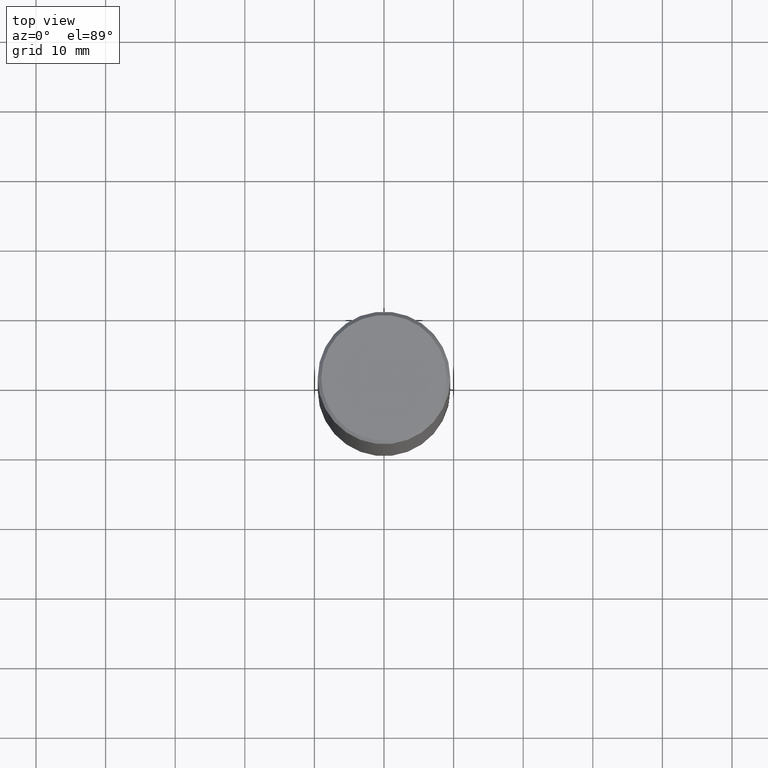
[diagram: clean part render]
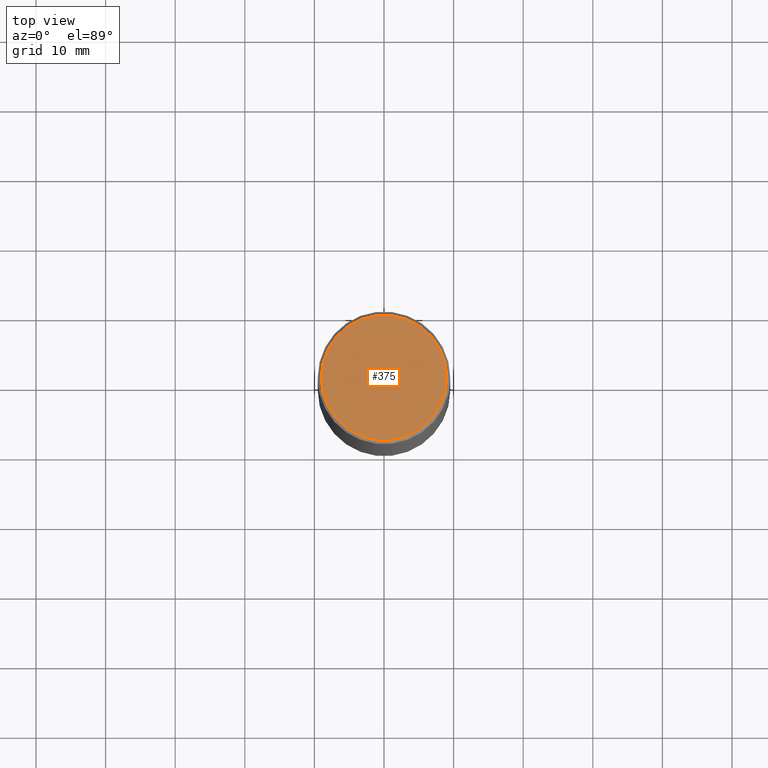
[diagram: same view with one face highlighted and labeled with its STEP entity id]
A machine part, top view. The second image highlights one B-rep face of the part: STEP entity #375.
In plain terms, the highlighted planar face has unit normal (0, -0, -1).
Its self-contained STEP definition (entity closure, byte-faithful):
#27 = DIRECTION ( 'NONE',  ( -2.445468806185136597E-29, 3.491481338843145583E-15, 1.000000000000000000 ) ) ;
#55 = CARTESIAN_POINT ( 'NONE',  ( 2.478951750578617109E-15, 0.3549999999999989275, -1.237341619044262680E-15 ) ) ;
#65 = CARTESIAN_POINT ( 'NONE',  ( -0.3549999999999989275, 2.513866563967048758E-15, 4.268512490082953109E-18 ) ) ;
#77 = DIRECTION ( 'NONE',  ( 1.000000000000000000, -6.982962677686266711E-15, 4.876231632512002757E-29 ) ) ;
#86 = AXIS2_PLACEMENT_3D ( 'NONE', #55, #137, #403 ) ;
#101 = VERTEX_POINT ( 'NONE', #65 ) ;
#134 = EDGE_LOOP ( 'NONE', ( #472, #201 ) ) ;
#137 = DIRECTION ( 'NONE',  ( 2.438088387897960049E-29, -3.491481338843145188E-15, -1.000000000000000000 ) ) ;
#157 = DIRECTION ( 'NONE',  ( -2.445468806185136597E-29, 3.491481338843145583E-15, 1.000000000000000000 ) ) ;
#198 = CARTESIAN_POINT ( 'NONE',  ( -1.043851414335219820E-46, 1.490343170380447200E-32, 4.268512490100411279E-18 ) ) ;
#201 = ORIENTED_EDGE ( 'NONE', *, *, #423, .T. ) ;
#212 = DIRECTION ( 'NONE',  ( 1.000000000000000000, -6.982962677686266711E-15, 4.876231632512002757E-29 ) ) ;
#218 = EDGE_CURVE ( 'NONE', #101, #433, #339, .T. ) ;
#219 = CARTESIAN_POINT ( 'NONE',  ( 0.3549999999999989275, -2.538996582575033948E-15, 4.268512490117958041E-18 ) ) ;
#251 = AXIS2_PLACEMENT_3D ( 'NONE', #298, #27, #212 ) ;
#259 = FACE_OUTER_BOUND ( 'NONE', #134, .T. ) ;
#298 = CARTESIAN_POINT ( 'NONE',  ( -1.043851414335219820E-46, 1.490343170380447200E-32, 4.268512490100411279E-18 ) ) ;
#325 = CIRCLE ( 'NONE', #251, 0.3549999999999989275 ) ;
#328 = PLANE ( 'NONE',  #86 ) ;
#339 = CIRCLE ( 'NONE', #467, 0.3549999999999989275 ) ;
#375 = ADVANCED_FACE ( 'NONE', ( #259 ), #328, .F. ) ;
#403 = DIRECTION ( 'NONE',  ( -1.000000000000000000, 6.982962677686265922E-15, -4.876176775795935793E-29 ) ) ;
#423 = EDGE_CURVE ( 'NONE', #433, #101, #325, .T. ) ;
#433 = VERTEX_POINT ( 'NONE', #219 ) ;
#467 = AXIS2_PLACEMENT_3D ( 'NONE', #198, #157, #77 ) ;
#472 = ORIENTED_EDGE ( 'NONE', *, *, #218, .T. ) ;